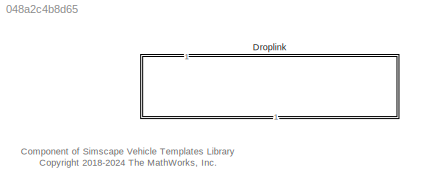
MODEL slx_048a2c4b8d65
KIND library
CONFIG AbsTol = auto
CONFIG EnableMultiTasking = off
CONFIG FixedStep = auto
CONFIG MaxStep = auto
CONFIG MinStep = auto
CONFIG RelTol = 1e-3
CONFIG SampleTimeConstraint = Unconstrained
CONFIG SolverName = VariableStepAuto
CONFIG StartTime = 0.0
CONFIG StopTime = 10.0
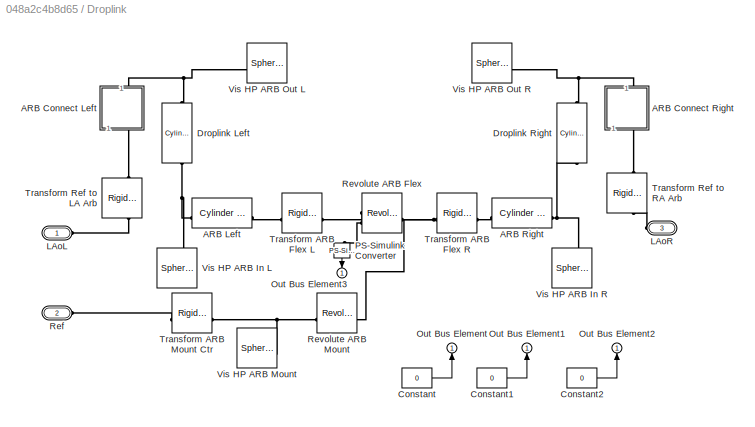
BLOCK [SubSystem] Droplink
  NameLocation = left
  VariantControl = Variant1
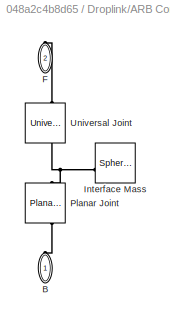
BLOCK [SubSystem] Droplink/ARB Connect Left
  NameLocation = left
BLOCK [PMIOPort] Droplink/ARB Connect Left/B
  NameLocation = right
  Side = Left
BLOCK [PMIOPort] Droplink/ARB Connect Left/F
  NameLocation = right
  Port = 2
  Side = Right
BLOCK [Reference] Droplink/ARB Connect Left/Interface Mass  REF=sm_lib/Body Elements/Spherical Solid
  SourceBlock = sm_lib/Body Elements/Spherical Solid
  SourceType = Spherical Solid
BLOCK [Reference] Droplink/ARB Connect Left/Planar Joint  REF=sm_lib/Joints/Planar Joint
  NameLocation = left
  SourceBlock = sm_lib/Joints/Planar Joint
  SourceType = Planar Joint
BLOCK [Reference] Droplink/ARB Connect Left/Universal Joint  REF=sm_lib/Joints/Universal
Joint
  NameLocation = left
  SourceBlock = sm_lib/Joints/Universal\nJoint
  SourceType = Universal\nJoint
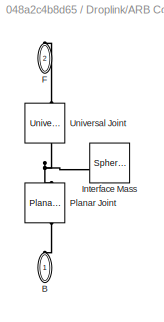
BLOCK [SubSystem] Droplink/ARB Connect Right
  NameLocation = right
BLOCK [PMIOPort] Droplink/ARB Connect Right/B
  NameLocation = right
  Side = Left
BLOCK [PMIOPort] Droplink/ARB Connect Right/F
  NameLocation = right
  Port = 2
  Side = Right
BLOCK [Reference] Droplink/ARB Connect Right/Interface Mass  REF=sm_lib/Body Elements/Spherical Solid
  SourceBlock = sm_lib/Body Elements/Spherical Solid
  SourceType = Spherical Solid
BLOCK [Reference] Droplink/ARB Connect Right/Planar Joint  REF=sm_lib/Joints/Planar Joint
  NameLocation = left
  SourceBlock = sm_lib/Joints/Planar Joint
  SourceType = Planar Joint
BLOCK [Reference] Droplink/ARB Connect Right/Universal Joint  REF=sm_lib/Joints/Universal
Joint
  NameLocation = left
  SourceBlock = sm_lib/Joints/Universal\nJoint
  SourceType = Universal\nJoint
BLOCK [Reference] Droplink/ARB Left  REF=Suspension_Utilities/Cylinder Between
Two Points
  SourceBlock = Suspension_Utilities/Cylinder Between\nTwo Points
  SourceProductName = SmCar - Suspension Utilites
  SourceType = Cylinder between two points
BLOCK [Reference] Droplink/ARB Right  REF=Suspension_Utilities/Cylinder Between
Two Points
  SourceBlock = Suspension_Utilities/Cylinder Between\nTwo Points
  SourceProductName = SmCar - Suspension Utilites
  SourceType = Cylinder between two points
BLOCK [Constant] Droplink/Constant
  Value = 0
BLOCK [Constant] Droplink/Constant1
  Value = 0
BLOCK [Constant] Droplink/Constant2
  Value = 0
BLOCK [Reference] Droplink/Droplink Left  REF=Suspension_Utilities/Cylinder Between
Two Points
  NameLocation = right
  SourceBlock = Suspension_Utilities/Cylinder Between\nTwo Points
  SourceProductName = SmCar - Suspension Utilites
  SourceType = Cylinder between two points
BLOCK [Reference] Droplink/Droplink Right  REF=Suspension_Utilities/Cylinder Between
Two Points
  NameLocation = left
  SourceBlock = Suspension_Utilities/Cylinder Between\nTwo Points
  SourceProductName = SmCar - Suspension Utilites
  SourceType = Cylinder between two points
BLOCK [PMIOPort] Droplink/LAoL
  Side = Left
BLOCK [PMIOPort] Droplink/LAoR
  Port = 3
  Side = Left
BLOCK [Outport] Droplink/Out Bus Element
  NameLocation = right
  VectorParamsAs1DForOutWhenUnconnected = off
BLOCK [Outport] Droplink/Out Bus Element1
  NameLocation = right
  VectorParamsAs1DForOutWhenUnconnected = off
BLOCK [Outport] Droplink/Out Bus Element2
  NameLocation = left
  VectorParamsAs1DForOutWhenUnconnected = off
BLOCK [Outport] Droplink/Out Bus Element3
  NameLocation = left
  VectorParamsAs1DForOutWhenUnconnected = off
BLOCK [Reference] Droplink/PS-Simulink Converter  REF=nesl_utility/PS-Simulink
Converter
  NameLocation = left
  SourceBlock = nesl_utility/PS-Simulink\nConverter
  SourceType = PS-Simulink\nConverter
BLOCK [PMIOPort] Droplink/Ref
  NameLocation = top
  Port = 2
  Side = Left
BLOCK [Reference] Droplink/Revolute ARB Flex  REF=sm_lib/Joints/Revolute Joint
  SourceBlock = sm_lib/Joints/Revolute Joint
  SourceType = Revolute Joint
BLOCK [Reference] Droplink/Revolute ARB Mount  REF=sm_lib/Joints/Revolute Joint
  SourceBlock = sm_lib/Joints/Revolute Joint
  SourceType = Revolute Joint
BLOCK [Reference] Droplink/Transform ARB Flex L  REF=sm_lib/Frames and
Transforms/Rigid
Transform
  NameLocation = top
  SourceBlock = sm_lib/Frames and\nTransforms/Rigid\nTransform
  SourceType = Rigid\nTransform
BLOCK [Reference] Droplink/Transform ARB Flex R  REF=sm_lib/Frames and
Transforms/Rigid
Transform
  NameLocation = top
  SourceBlock = sm_lib/Frames and\nTransforms/Rigid\nTransform
  SourceType = Rigid\nTransform
BLOCK [Reference] Droplink/Transform ARB Mount Ctr  REF=sm_lib/Frames and
Transforms/Rigid
Transform
  SourceBlock = sm_lib/Frames and\nTransforms/Rigid\nTransform
  SourceType = Rigid\nTransform
BLOCK [Reference] Droplink/Transform Ref to LA Arb  REF=sm_lib/Frames and
Transforms/Rigid
Transform
  NameLocation = left
  SourceBlock = sm_lib/Frames and\nTransforms/Rigid\nTransform
  SourceType = Rigid\nTransform
BLOCK [Reference] Droplink/Transform Ref to RA Arb  REF=sm_lib/Frames and
Transforms/Rigid
Transform
  NameLocation = right
  SourceBlock = sm_lib/Frames and\nTransforms/Rigid\nTransform
  SourceType = Rigid\nTransform
BLOCK [Reference] Droplink/Vis HP ARB In L  REF=sm_lib/Body Elements/Spherical Solid
  NameLocation = left
  SourceBlock = sm_lib/Body Elements/Spherical Solid
  SourceType = Spherical Solid
BLOCK [Reference] Droplink/Vis HP ARB In R  REF=sm_lib/Body Elements/Spherical Solid
  NameLocation = right
  SourceBlock = sm_lib/Body Elements/Spherical Solid
  SourceType = Spherical Solid
BLOCK [Reference] Droplink/Vis HP ARB Mount  REF=sm_lib/Body Elements/Spherical Solid
  SourceBlock = sm_lib/Body Elements/Spherical Solid
  SourceType = Spherical Solid
BLOCK [Reference] Droplink/Vis HP ARB Out L  REF=sm_lib/Body Elements/Spherical Solid
  SourceBlock = sm_lib/Body Elements/Spherical Solid
  SourceType = Spherical Solid
BLOCK [Reference] Droplink/Vis HP ARB Out R  REF=sm_lib/Body Elements/Spherical Solid
  SourceBlock = sm_lib/Body Elements/Spherical Solid
  SourceType = Spherical Solid
ANNOTATION (root): Component of Simscape Vehicle Templates Library <copyright redacted>
LINE Droplink/Constant1:1 -> Droplink/Out Bus Element1:1
LINE Droplink/Constant2:1 -> Droplink/Out Bus Element2:1
LINE Droplink/Constant:1 -> Droplink/Out Bus Element:1
LINE Droplink/PS-Simulink Converter:1 -> Droplink/Out Bus Element3:1
PLINE Droplink/ARB Connect Left/B:RConn1 -- Droplink/ARB Connect Left/Planar Joint:LConn1
PLINE Droplink/ARB Connect Left/F:RConn1 -- Droplink/ARB Connect Left/Universal Joint:RConn1
PNET net1: Droplink/ARB Connect Left/Interface Mass:RConn1 -- Droplink/ARB Connect Left/Planar Joint:RConn1 -- Droplink/ARB Connect Left/Universal Joint:LConn1
PLINE Droplink/ARB Connect Left:LConn1 -- Droplink/Transform Ref to LA Arb:RConn1
PNET net2: Droplink/ARB Connect Left:RConn1 -- Droplink/Droplink Left:RConn1 -- Droplink/Vis HP ARB Out L:RConn1
PLINE Droplink/ARB Connect Right/B:RConn1 -- Droplink/ARB Connect Right/Planar Joint:LConn1
PLINE Droplink/ARB Connect Right/F:RConn1 -- Droplink/ARB Connect Right/Universal Joint:RConn1
PNET net3: Droplink/ARB Connect Right/Interface Mass:RConn1 -- Droplink/ARB Connect Right/Planar Joint:RConn1 -- Droplink/ARB Connect Right/Universal Joint:LConn1
PLINE Droplink/ARB Connect Right:LConn1 -- Droplink/Transform Ref to RA Arb:RConn1
PNET net4: Droplink/ARB Connect Right:RConn1 -- Droplink/Droplink Right:LConn1 -- Droplink/Vis HP ARB Out R:RConn1
PLINE Droplink/ARB Left:LConn1 -- Droplink/Transform ARB Flex L:LConn1
PNET net5: Droplink/ARB Left:RConn1 -- Droplink/Droplink Left:LConn1 -- Droplink/Vis HP ARB In L:RConn1
PNET net6: Droplink/ARB Right:LConn1 -- Droplink/Droplink Right:RConn1 -- Droplink/Vis HP ARB In R:RConn1
PLINE Droplink/ARB Right:RConn1 -- Droplink/Transform ARB Flex R:LConn1
PLINE Droplink/LAoL:RConn1 -- Droplink/Transform Ref to LA Arb:LConn1
PLINE Droplink/LAoR:RConn1 -- Droplink/Transform Ref to RA Arb:LConn1
PLINE Droplink/PS-Simulink Converter:LConn1 -- Droplink/Revolute ARB Flex:RConn2
PLINE Droplink/Ref:RConn1 -- Droplink/Transform ARB Mount Ctr:LConn1
PNET net7: Droplink/Revolute ARB Flex:LConn1 -- Droplink/Revolute ARB Mount:RConn1 -- Droplink/Transform ARB Flex R:RConn1
PLINE Droplink/Revolute ARB Flex:RConn1 -- Droplink/Transform ARB Flex L:RConn1
PNET net8: Droplink/Revolute ARB Mount:LConn1 -- Droplink/Transform ARB Mount Ctr:RConn1 -- Droplink/Vis HP ARB Mount:RConn1
note: PNET lines group multi-terminal physical nets as a canonical sorted terminal list (undirected conserving connections); 2-terminal nets keep the pairwise PLINE form
